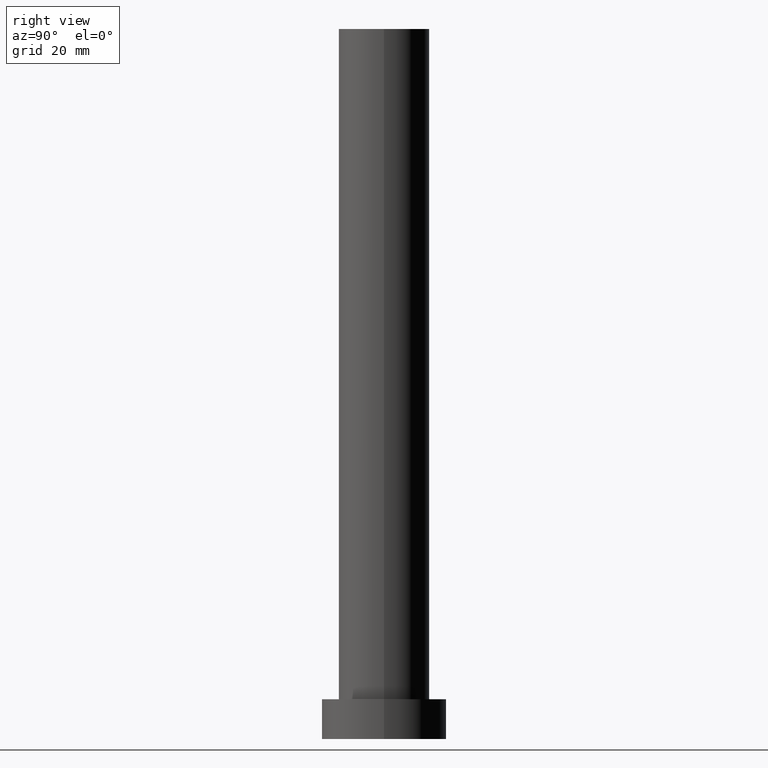
[diagram: clean part render]
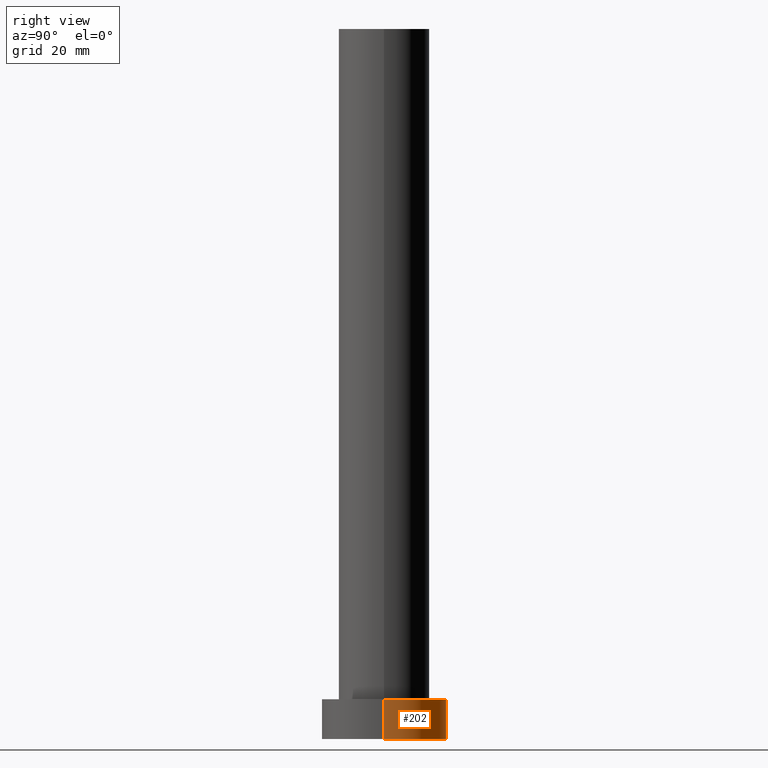
[diagram: same view with one face highlighted and labeled with its STEP entity id]
A machine part, right view. The second image highlights one B-rep face of the part: STEP entity #202.
In plain terms, the highlighted cylindrical surface (partial cylindrical patch) has radius 11 mm, axis along (-0, -0, -1).
Its self-contained STEP definition (entity closure, byte-faithful):
#9 = ORIENTED_EDGE ( 'NONE', *, *, #221, .F. ) ;
#10 = DIRECTION ( 'NONE',  ( 1.000000000000000000, 0.000000000000000000, 0.000000000000000000 ) ) ;
#15 = DIRECTION ( 'NONE',  ( 0.000000000000000000, 0.000000000000000000, 1.000000000000000000 ) ) ;
#16 = AXIS2_PLACEMENT_3D ( 'NONE', #192, #162, #10 ) ;
#20 = EDGE_CURVE ( 'NONE', #86, #245, #164, .T. ) ;
#41 = DIRECTION ( 'NONE',  ( -1.000000000000000000, 0.000000000000000000, 0.000000000000000000 ) ) ;
#44 = VERTEX_POINT ( 'NONE', #113 ) ;
#47 = ORIENTED_EDGE ( 'NONE', *, *, #20, .T. ) ;
#50 = CARTESIAN_POINT ( 'NONE',  ( 11.00000000000000000, 1.347111479062088405E-15, 0.000000000000000000 ) ) ;
#53 = LINE ( 'NONE', #73, #201 ) ;
#57 = DIRECTION ( 'NONE',  ( 1.000000000000000000, 0.000000000000000000, 0.000000000000000000 ) ) ;
#66 = AXIS2_PLACEMENT_3D ( 'NONE', #137, #89, #41 ) ;
#73 = CARTESIAN_POINT ( 'NONE',  ( 11.00000000000000000, 1.347111479062088405E-15, 7.000000000000000000 ) ) ;
#74 = EDGE_CURVE ( 'NONE', #186, #86, #53, .T. ) ;
#86 = VERTEX_POINT ( 'NONE', #50 ) ;
#87 = LINE ( 'NONE', #140, #180 ) ;
#89 = DIRECTION ( 'NONE',  ( -0.000000000000000000, -0.000000000000000000, -1.000000000000000000 ) ) ;
#113 = CARTESIAN_POINT ( 'NONE',  ( -11.00000000000000000, 0.000000000000000000, 7.000000000000000000 ) ) ;
#116 = ORIENTED_EDGE ( 'NONE', *, *, #125, .F. ) ;
#117 = CARTESIAN_POINT ( 'NONE',  ( -11.00000000000000000, 0.000000000000000000, 0.000000000000000000 ) ) ;
#120 = CARTESIAN_POINT ( 'NONE',  ( 11.00000000000000000, 1.347111479062088405E-15, 7.000000000000000000 ) ) ;
#125 = EDGE_CURVE ( 'NONE', #186, #44, #182, .T. ) ;
#134 = CYLINDRICAL_SURFACE ( 'NONE', #66, 11.00000000000000000 ) ;
#137 = CARTESIAN_POINT ( 'NONE',  ( 0.000000000000000000, 0.000000000000000000, 7.000000000000000000 ) ) ;
#138 = ORIENTED_EDGE ( 'NONE', *, *, #74, .T. ) ;
#140 = CARTESIAN_POINT ( 'NONE',  ( -11.00000000000000000, 0.000000000000000000, 7.000000000000000000 ) ) ;
#156 = DIRECTION ( 'NONE',  ( -0.000000000000000000, -0.000000000000000000, -1.000000000000000000 ) ) ;
#162 = DIRECTION ( 'NONE',  ( 0.000000000000000000, 0.000000000000000000, 1.000000000000000000 ) ) ;
#164 = CIRCLE ( 'NONE', #16, 11.00000000000000000 ) ;
#172 = FACE_OUTER_BOUND ( 'NONE', #206, .T. ) ;
#175 = DIRECTION ( 'NONE',  ( -0.000000000000000000, -0.000000000000000000, -1.000000000000000000 ) ) ;
#178 = AXIS2_PLACEMENT_3D ( 'NONE', #235, #15, #57 ) ;
#180 = VECTOR ( 'NONE', #156, 1000.000000000000000 ) ;
#182 = CIRCLE ( 'NONE', #178, 11.00000000000000000 ) ;
#186 = VERTEX_POINT ( 'NONE', #120 ) ;
#192 = CARTESIAN_POINT ( 'NONE',  ( 0.000000000000000000, 0.000000000000000000, 0.000000000000000000 ) ) ;
#201 = VECTOR ( 'NONE', #175, 1000.000000000000000 ) ;
#202 = ADVANCED_FACE ( 'NONE', ( #172 ), #134, .T. ) ;
#206 = EDGE_LOOP ( 'NONE', ( #116, #138, #47, #9 ) ) ;
#221 = EDGE_CURVE ( 'NONE', #44, #245, #87, .T. ) ;
#235 = CARTESIAN_POINT ( 'NONE',  ( 0.000000000000000000, 0.000000000000000000, 7.000000000000000000 ) ) ;
#245 = VERTEX_POINT ( 'NONE', #117 ) ;